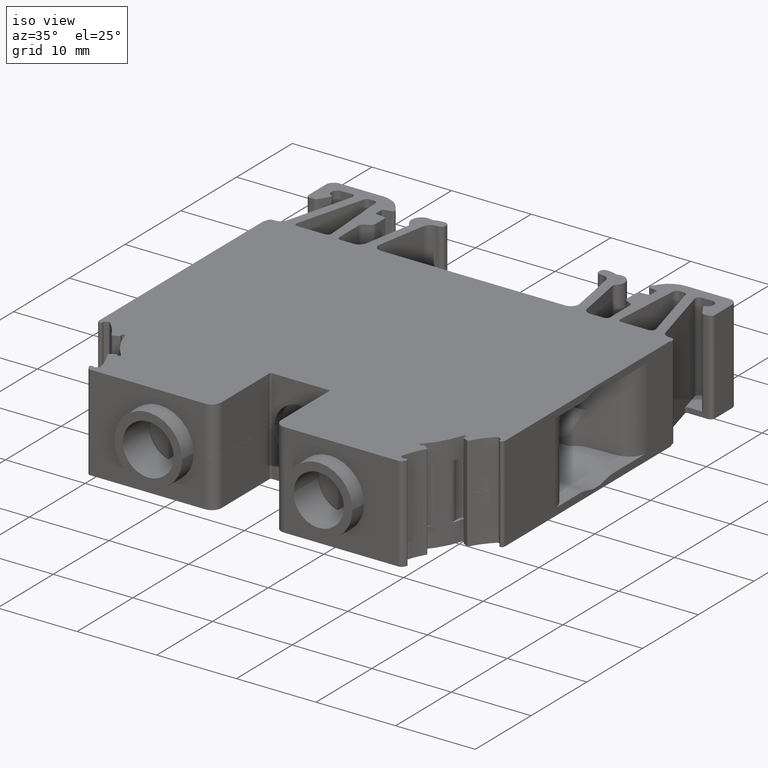
[diagram: clean part render]
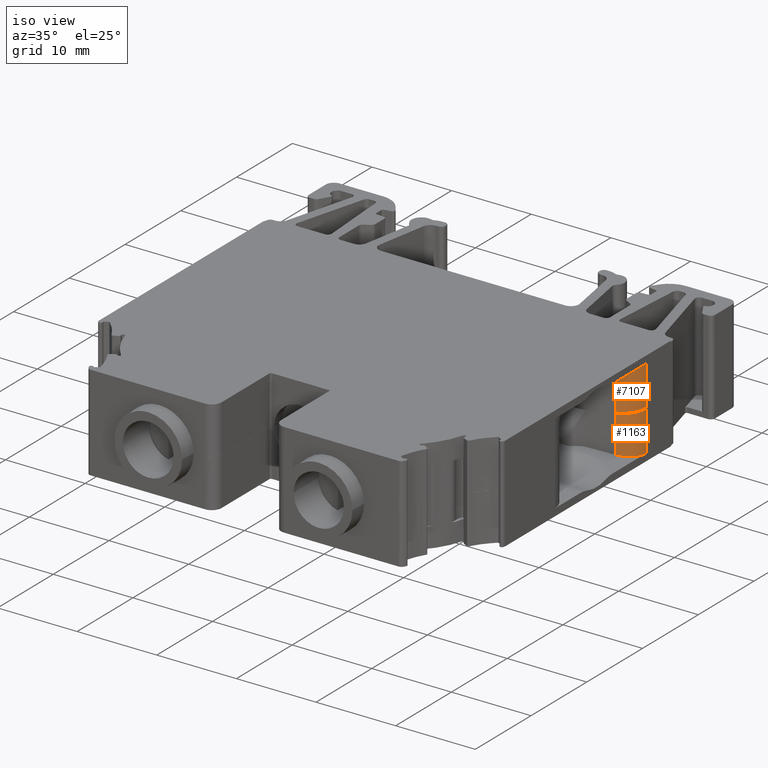
[diagram: same view with one multi-face feature highlighted, each face labeled with its STEP entity id]
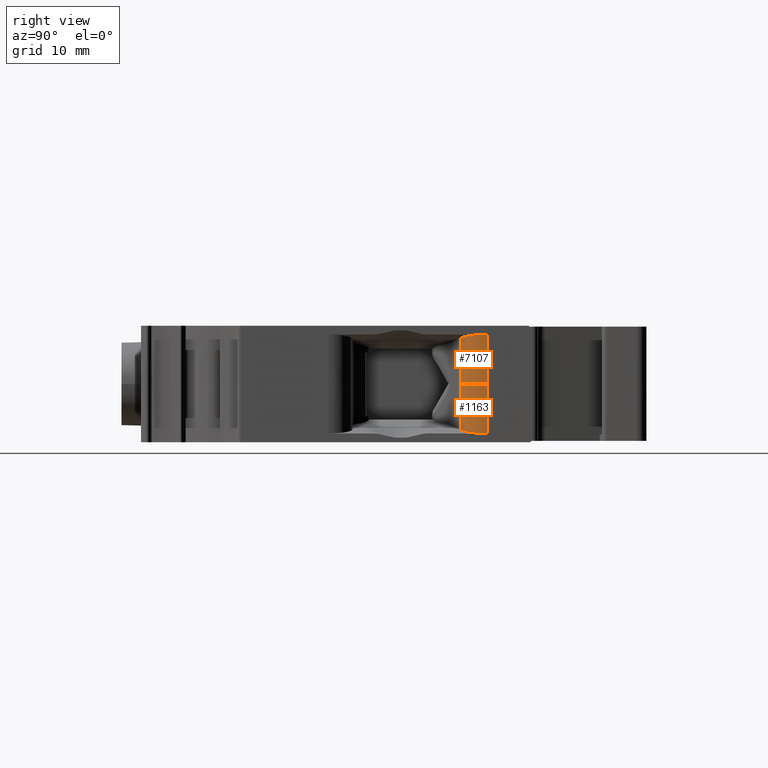
[diagram: same view with one multi-face feature highlighted, each face labeled with its STEP entity id]
A machine part, iso view. The highlighted faces form ONE feature: a constant-radius fillet chain: 2 tangent blend faces with common blend radius 3 mm. The faces share edges in the B-rep.
A second angle (right view) of the same feature is appended — it is thin or edge-on in the first view.
Their STEP definitions:
[1] entity #1163 (Cylinder):
#73 = AXIS2_PLACEMENT_3D ( 'NONE', #2589, #2581, #2574 ) ;
#1163 = ADVANCED_FACE ( 'NONE', ( #3397 ), #2577, .T. ) ;
#2495 = VECTOR ( 'NONE', #20184, 1000.000000000000200 ) ;
#2574 = DIRECTION ( 'NONE',  ( 0.0000000000000000000, 1.000000000000000000, 0.0000000000000000000 ) ) ;
#2577 = CYLINDRICAL_SURFACE ( 'NONE', #73, 2.999890210406752600 ) ;
#2581 = DIRECTION ( 'NONE',  ( 6.982962677685890400E-015, 6.918467960871611000E-014, -1.000000000000000000 ) ) ;
#2589 = CARTESIAN_POINT ( 'NONE',  ( -87.42012215919000100, 235.6138370286239800, -500222.7735085100300 ) ) ;
#3397 = FACE_OUTER_BOUND ( 'NONE', #22901, .T. ) ;
#4772 = CARTESIAN_POINT ( 'NONE',  ( -85.13765370804313200, 233.6431026845623900, -142.5330871800840100 ) ) ;
#4971 = CARTESIAN_POINT ( 'NONE',  ( -84.78727310297669800, 234.1434813947888900, -142.5330871800840100 ) ) ;
#5043 = CARTESIAN_POINT ( 'NONE',  ( -84.65060827125560600, 234.4205936411166500, -142.5330871800840700 ) ) ;
#5317 = CARTESIAN_POINT ( 'NONE',  ( -86.39383982451181500, 232.7949567545379100, -142.5330871800838700 ) ) ;
#5322 = CARTESIAN_POINT ( 'NONE',  ( -86.10683302128283900, 232.8994242155668500, -142.5330871800838400 ) ) ;
#5524 = CARTESIAN_POINT ( 'NONE',  ( -86.39383982451181500, 232.7949567545379100, -142.5330871800838700 ) ) ;
#5637 = CARTESIAN_POINT ( 'NONE',  ( -86.39409657509124000, 232.7948632857238600, -147.2740956575600000 ) ) ;
#5669 = CARTESIAN_POINT ( 'NONE',  ( -85.83594353579044900, 233.0480423838501700, -142.5330871800838700 ) ) ;
#5823 = CARTESIAN_POINT ( 'NONE',  ( -85.35131889564505100, 233.4199084621881500, -142.5330871800839500 ) ) ;
#8497 = VERTEX_POINT ( 'NONE', #9955 ) ;
#8504 = VERTEX_POINT ( 'NONE', #9992 ) ;
#8721 = VERTEX_POINT ( 'NONE', #5524 ) ;
#8925 = VERTEX_POINT ( 'NONE', #5637 ) ;
#9955 = CARTESIAN_POINT ( 'NONE',  ( -84.42023195227513100, 235.6138369940260000, -147.6221417243008300 ) ) ;
#9992 = CARTESIAN_POINT ( 'NONE',  ( -84.42005178159499200, 235.6139817210478200, -142.5330871800832100 ) ) ;
#11023 = ORIENTED_EDGE ( 'NONE', *, *, #15253, .T. ) ;
#11040 = ORIENTED_EDGE ( 'NONE', *, *, #15095, .F. ) ;
#11049 = ORIENTED_EDGE ( 'NONE', *, *, #15628, .F. ) ;
#11132 = ORIENTED_EDGE ( 'NONE', *, *, #15328, .T. ) ;
#12652 = B_SPLINE_CURVE_WITH_KNOTS ( 'NONE', 3,
 ( #5317, #5322, #5669, #5823, #4772, #4971, #5043, #19396, #19348, #19397 ),
 .UNSPECIFIED., .F., .F.,
 ( 4, 2, 2, 2, 4 ),
 ( 0.0000000000000000000, 0.2500000000000000000, 0.5000000000000000000, 0.7500000000000000000, 1.000000000000000000 ),
 .UNSPECIFIED. ) ;
#12757 = B_SPLINE_CURVE_WITH_KNOTS ( 'NONE', 3,
 ( #18752, #18805, #18802, #18738, #18739, #18788, #18761, #18808, #18775, #18806, #18748, #18750, #18803, #18804, #18776, #18778, #18789, #18780 ),
 .UNSPECIFIED., .F., .F.,
 ( 4, 2, 2, 2, 1, 1, 2, 2, 2, 4 ),
 ( 0.0000000000000000000, 0.2500000000001961200, 0.3750000000002942100, 0.4375000000003391200, 0.4687500000003465600, 0.4843750000003401200, 0.4921875000003369500, 0.5000000000003337300, 0.7500000000001668700, 1.000000000000000000 ),
 .UNSPECIFIED. ) ;
#14243 = DIRECTION ( 'NONE',  ( -5.415655281801320300E-005, -1.971143206284570100E-005, -0.9999999983392635600 ) ) ;
#14264 = LINE ( 'NONE', #14265, #22171 ) ;
#14265 = CARTESIAN_POINT ( 'NONE',  ( -86.39383981841594100, 232.7949567377890500, -142.5330871800838400 ) ) ;
#15095 = EDGE_CURVE ( 'NONE', #8721, #8504, #12652, .T. ) ;
#15253 = EDGE_CURVE ( 'NONE', #8925, #8497, #12757, .T. ) ;
#15328 = EDGE_CURVE ( 'NONE', #8721, #8925, #14264, .T. ) ;
#15628 = EDGE_CURVE ( 'NONE', #8504, #8497, #20180, .T. ) ;
#18738 = CARTESIAN_POINT ( 'NONE',  ( -85.42628769258647000, 233.3672204473307700, -147.4443093788221100 ) ) ;
#18739 = CARTESIAN_POINT ( 'NONE',  ( -85.31839868046940000, 233.4685175779779900, -147.4634256083253900 ) ) ;
#18748 = CARTESIAN_POINT ( 'NONE',  ( -84.98191177683722200, 233.8661126630985300, -147.5231003290007000 ) ) ;
#18750 = CARTESIAN_POINT ( 'NONE',  ( -84.97227404111650600, 233.8796369489605000, -147.5248013686710400 ) ) ;
#18752 = CARTESIAN_POINT ( 'NONE',  ( -86.39409657509124000, 232.7948632857238600, -147.2740956575600000 ) ) ;
#18761 = CARTESIAN_POINT ( 'NONE',  ( -85.12728882283667500, 233.6781272873918500, -147.4973475273190200 ) ) ;
#18775 = CARTESIAN_POINT ( 'NONE',  ( -85.03133585183657300, 233.7986172404558300, -147.5143631397346600 ) ) ;
#18776 = CARTESIAN_POINT ( 'NONE',  ( -84.64513169624090900, 234.4339847592997600, -147.5822543855543400 ) ) ;
#18778 = CARTESIAN_POINT ( 'NONE',  ( -84.46429078899535600, 235.0174442752932300, -147.6141416410996200 ) ) ;
#18780 = CARTESIAN_POINT ( 'NONE',  ( -84.42023195227513100, 235.6138369940260000, -147.6221417243008300 ) ) ;
#18788 = CARTESIAN_POINT ( 'NONE',  ( -85.17301644789697000, 233.6251361340199800, -147.4892262592802900 ) ) ;
#18789 = CARTESIAN_POINT ( 'NONE',  ( -84.42023195227531600, 235.3181674986967900, -147.6221228780900700 ) ) ;
#18802 = CARTESIAN_POINT ( 'NONE',  ( -85.78395578927222700, 233.0809368808848500, -147.3812133038262300 ) ) ;
#18803 = CARTESIAN_POINT ( 'NONE',  ( -84.96840437616135900, 233.8851038811445200, -147.5254840698129300 ) ) ;
#18804 = CARTESIAN_POINT ( 'NONE',  ( -84.78197950890269400, 234.1513464558898900, -147.5583483669615200 ) ) ;
#18805 = CARTESIAN_POINT ( 'NONE',  ( -86.06857641556339900, 232.9133432885585400, -147.3314860717211200 ) ) ;
#18806 = CARTESIAN_POINT ( 'NONE',  ( -84.99648745253894300, 233.8458373599262400, -147.5205263186979600 ) ) ;
#18808 = CARTESIAN_POINT ( 'NONE',  ( -85.06266013440453800, 233.7583335746636500, -147.5088110061485900 ) ) ;
#19348 = CARTESIAN_POINT ( 'NONE',  ( -84.41988634622406100, 235.3085535717041000, -142.5330871800841200 ) ) ;
#19396 = CARTESIAN_POINT ( 'NONE',  ( -84.46690163167588100, 235.0031717840544200, -142.5330871800841500 ) ) ;
#19397 = CARTESIAN_POINT ( 'NONE',  ( -84.42005178159499200, 235.6139817210478200, -142.5330871800832100 ) ) ;
#20180 = LINE ( 'NONE', #20216, #2495 ) ;
#20184 = DIRECTION ( 'NONE',  ( 5.453974871607241400E-015, -2.843916667468261400E-005, -0.9999999995956068100 ) ) ;
#20216 = CARTESIAN_POINT ( 'NONE',  ( -84.42023195227498900, 235.6139817224964500, -142.5330871800831600 ) ) ;
#22171 = VECTOR ( 'NONE', #14243, 1000.000000000000100 ) ;
#22901 = EDGE_LOOP ( 'NONE', ( #11023, #11049, #11040, #11132 ) ) ;
[2] entity #7107 (Cylinder):
#4772 = CARTESIAN_POINT ( 'NONE',  ( -85.13765370804313200, 233.6431026845623900, -142.5330871800840100 ) ) ;
#4971 = CARTESIAN_POINT ( 'NONE',  ( -84.78727310297669800, 234.1434813947888900, -142.5330871800840100 ) ) ;
#5043 = CARTESIAN_POINT ( 'NONE',  ( -84.65060827125560600, 234.4205936411166500, -142.5330871800840700 ) ) ;
#5317 = CARTESIAN_POINT ( 'NONE',  ( -86.39383982451181500, 232.7949567545379100, -142.5330871800838700 ) ) ;
#5322 = CARTESIAN_POINT ( 'NONE',  ( -86.10683302128283900, 232.8994242155668500, -142.5330871800838400 ) ) ;
#5502 = CARTESIAN_POINT ( 'NONE',  ( -86.39388495769378600, 232.7949403392928800, -137.7917214782117100 ) ) ;
#5524 = CARTESIAN_POINT ( 'NONE',  ( -86.39383982451181500, 232.7949567545379100, -142.5330871800838700 ) ) ;
#5669 = CARTESIAN_POINT ( 'NONE',  ( -85.83594353579044900, 233.0480423838501700, -142.5330871800838700 ) ) ;
#5823 = CARTESIAN_POINT ( 'NONE',  ( -85.35131889564505100, 233.4199084621881500, -142.5330871800839500 ) ) ;
#7107 = ADVANCED_FACE ( 'NONE', ( #9357 ), #9311, .T. ) ;
#8360 = VERTEX_POINT ( 'NONE', #9892 ) ;
#8504 = VERTEX_POINT ( 'NONE', #9992 ) ;
#8721 = VERTEX_POINT ( 'NONE', #5524 ) ;
#8765 = VERTEX_POINT ( 'NONE', #5502 ) ;
#9311 = CYLINDRICAL_SURFACE ( 'NONE', #12159, 3.000116245434003600 ) ;
#9317 = CARTESIAN_POINT ( 'NONE',  ( -87.41998780279909900, 235.6141264737765700, 499975.3872633610200 ) ) ;
#9333 = DIRECTION ( 'NONE',  ( 1.024210827134004000E-013, 4.560878547028909600E-014, 1.000000000000000000 ) ) ;
#9342 = DIRECTION ( 'NONE',  ( 1.000000000000000000, 0.0000000000000000000, 0.0000000000000000000 ) ) ;
#9357 = FACE_OUTER_BOUND ( 'NONE', #22865, .T. ) ;
#9892 = CARTESIAN_POINT ( 'NONE',  ( -84.41987162633095900, 235.6141264509591300, -137.4436497795350100 ) ) ;
#9992 = CARTESIAN_POINT ( 'NONE',  ( -84.42005178159499200, 235.6139817210478200, -142.5330871800832100 ) ) ;
#10764 = ORIENTED_EDGE ( 'NONE', *, *, #15112, .T. ) ;
#10772 = ORIENTED_EDGE ( 'NONE', *, *, #15095, .T. ) ;
#10777 = ORIENTED_EDGE ( 'NONE', *, *, #15111, .T. ) ;
#10820 = ORIENTED_EDGE ( 'NONE', *, *, #15675, .F. ) ;
#12159 = AXIS2_PLACEMENT_3D ( 'NONE', #9317, #9333, #9342 ) ;
#12652 = B_SPLINE_CURVE_WITH_KNOTS ( 'NONE', 3,
 ( #5317, #5322, #5669, #5823, #4772, #4971, #5043, #19396, #19348, #19397 ),
 .UNSPECIFIED., .F., .F.,
 ( 4, 2, 2, 2, 4 ),
 ( 0.0000000000000000000, 0.2500000000000000000, 0.5000000000000000000, 0.7500000000000000000, 1.000000000000000000 ),
 .UNSPECIFIED. ) ;
#12656 = B_SPLINE_CURVE_WITH_KNOTS ( 'NONE', 3,
 ( #19487, #19463, #19424, #19508, #19472, #19512, #19514, #19412, #19416, #19519, #19587, #19542, #19585, #19523, #19549, #19592, #19588, #19538 ),
 .UNSPECIFIED., .F., .F.,
 ( 4, 2, 2, 2, 1, 1, 2, 2, 2, 4 ),
 ( 0.0000000000000000000, 0.2499999999998191400, 0.3749999999997412100, 0.4374999999996922500, 0.4687499999996555000, 0.4843749999996411800, 0.4921874999996450100, 0.4999999999996488400, 0.7499999999998244700, 1.000000000000000000 ),
 .UNSPECIFIED. ) ;
#12708 = B_SPLINE_CURVE_WITH_KNOTS ( 'NONE', 3,
 ( #19482, #19493, #19559, #19594 ),
 .UNSPECIFIED., .F., .F.,
 ( 4, 4 ),
 ( 0.0000000000000000000, 1.000000000000000000 ),
 .UNSPECIFIED. ) ;
#15095 = EDGE_CURVE ( 'NONE', #8721, #8504, #12652, .T. ) ;
#15111 = EDGE_CURVE ( 'NONE', #8360, #8765, #12656, .T. ) ;
#15112 = EDGE_CURVE ( 'NONE', #8765, #8721, #12708, .T. ) ;
#15675 = EDGE_CURVE ( 'NONE', #8360, #8504, #20370, .T. ) ;
#19348 = CARTESIAN_POINT ( 'NONE',  ( -84.41988634622406100, 235.3085535717041000, -142.5330871800841200 ) ) ;
#19396 = CARTESIAN_POINT ( 'NONE',  ( -84.46690163167588100, 235.0031717840544200, -142.5330871800841500 ) ) ;
#19397 = CARTESIAN_POINT ( 'NONE',  ( -84.42005178159499200, 235.6139817210478200, -142.5330871800832100 ) ) ;
#19412 = CARTESIAN_POINT ( 'NONE',  ( -84.85487825477613900, 234.0577076111917200, -137.5203835538114800 ) ) ;
#19416 = CARTESIAN_POINT ( 'NONE',  ( -84.88569906792379500, 234.0076466430272700, -137.5258023365568900 ) ) ;
#19424 = CARTESIAN_POINT ( 'NONE',  ( -84.46389431538594300, 235.0178843484471000, -137.4516214345744100 ) ) ;
#19463 = CARTESIAN_POINT ( 'NONE',  ( -84.41987160858718700, 235.3185669886751200, -137.4436492370708200 ) ) ;
#19472 = CARTESIAN_POINT ( 'NONE',  ( -84.65624119330198000, 234.4366346929199700, -137.4855040950570000 ) ) ;
#19482 = CARTESIAN_POINT ( 'NONE',  ( -86.39388495769378600, 232.7949403392928800, -137.7917214782117100 ) ) ;
#19487 = CARTESIAN_POINT ( 'NONE',  ( -84.41987162633095900, 235.6141264509591300, -137.4436497795350100 ) ) ;
#19493 = CARTESIAN_POINT ( 'NONE',  ( -86.39386991458002300, 232.7949458145532400, -139.3721767121670600 ) ) ;
#19508 = CARTESIAN_POINT ( 'NONE',  ( -84.59950626462489300, 234.5802477675816000, -137.4755385744874200 ) ) ;
#19512 = CARTESIAN_POINT ( 'NONE',  ( -84.75842688826270400, 234.2274715006045900, -137.5034420868375100 ) ) ;
#19514 = CARTESIAN_POINT ( 'NONE',  ( -84.79533108387704500, 234.1587942468388500, -137.5099197024845000 ) ) ;
#19519 = CARTESIAN_POINT ( 'NONE',  ( -84.92346818946119000, 233.9501660185900400, -137.5324512491327500 ) ) ;
#19523 = CARTESIAN_POINT ( 'NONE',  ( -85.11422304968378700, 233.6765565841106700, -137.5660810964899400 ) ) ;
#19538 = CARTESIAN_POINT ( 'NONE',  ( -86.39388495769378600, 232.7949403392928800, -137.7917214782117100 ) ) ;
#19542 = CARTESIAN_POINT ( 'NONE',  ( -84.95117413863063400, 233.9094994429159400, -137.5373328295049200 ) ) ;
#19549 = CARTESIAN_POINT ( 'NONE',  ( -85.30696779522176600, 233.4625828457639900, -137.6004961736992100 ) ) ;
#19559 = CARTESIAN_POINT ( 'NONE',  ( -86.39385487150818200, 232.7949512899363400, -140.9526319461254500 ) ) ;
#19585 = CARTESIAN_POINT ( 'NONE',  ( -84.95769231643004100, 233.9001058673205800, -137.5384818198267900 ) ) ;
#19587 = CARTESIAN_POINT ( 'NONE',  ( -84.94004052871538600, 233.9257379703186600, -137.5353708545270900 ) ) ;
#19588 = CARTESIAN_POINT ( 'NONE',  ( -86.06851177560699300, 232.9133668465526900, -137.7343499742664500 ) ) ;
#19592 = CARTESIAN_POINT ( 'NONE',  ( -85.78392935611145700, 233.0808861849448300, -137.6846306126443300 ) ) ;
#19594 = CARTESIAN_POINT ( 'NONE',  ( -86.39383982451181500, 232.7949567545379100, -142.5330871800838700 ) ) ;
#20348 = CARTESIAN_POINT ( 'NONE',  ( -84.41987160858708700, 235.6141264509670300, -137.4436496019988000 ) ) ;
#20363 = DIRECTION ( 'NONE',  ( -1.008909414455953700E-013, -2.843702635465570400E-005, -0.9999999995956677700 ) ) ;
#20370 = LINE ( 'NONE', #20348, #21920 ) ;
#21920 = VECTOR ( 'NONE', #20363, 1000.000000000000000 ) ;
#22865 = EDGE_LOOP ( 'NONE', ( #10777, #10764, #10772, #10820 ) ) ;